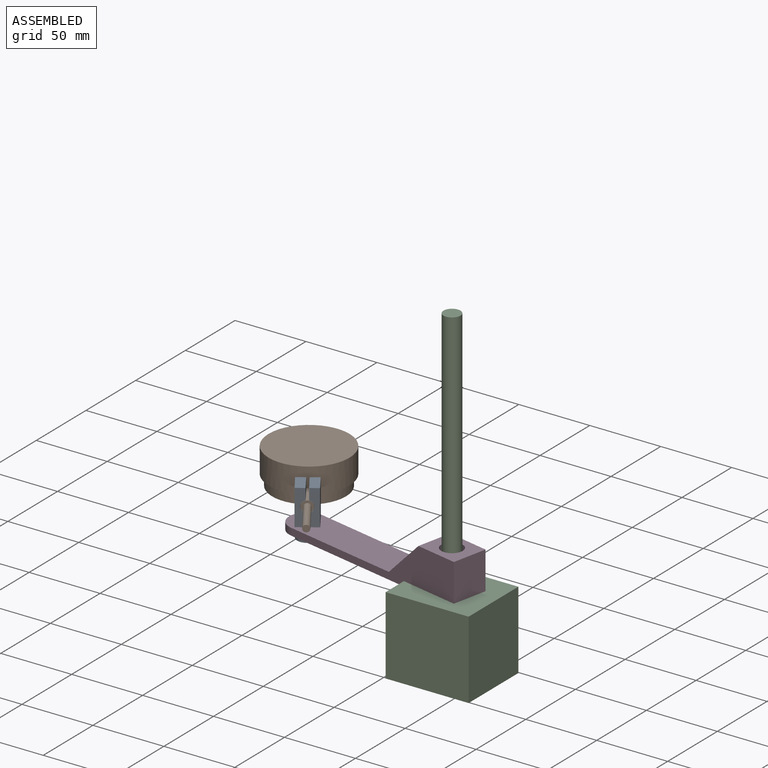
[diagram: assembled view]
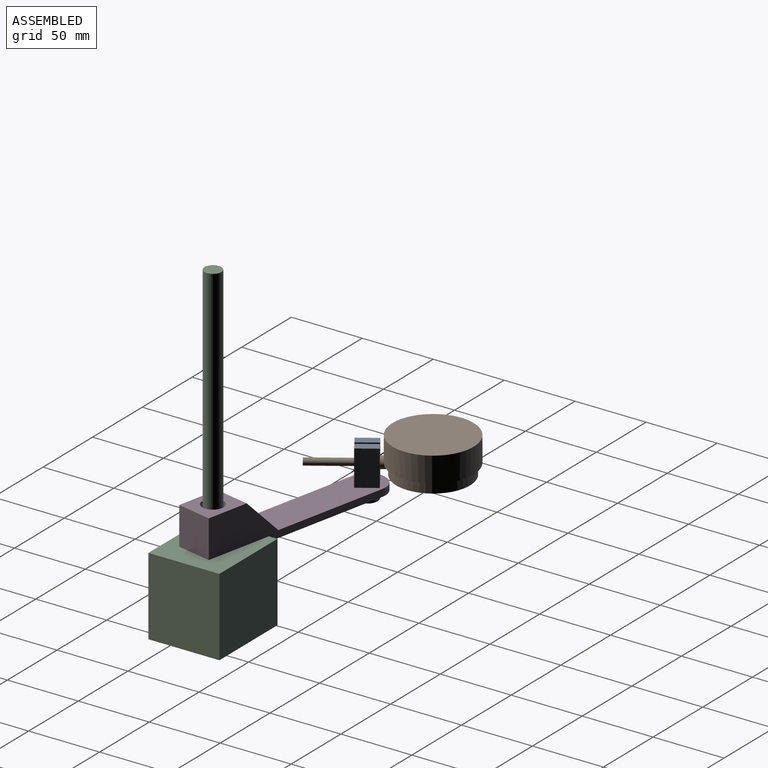
[diagram: assembled view, second angle]
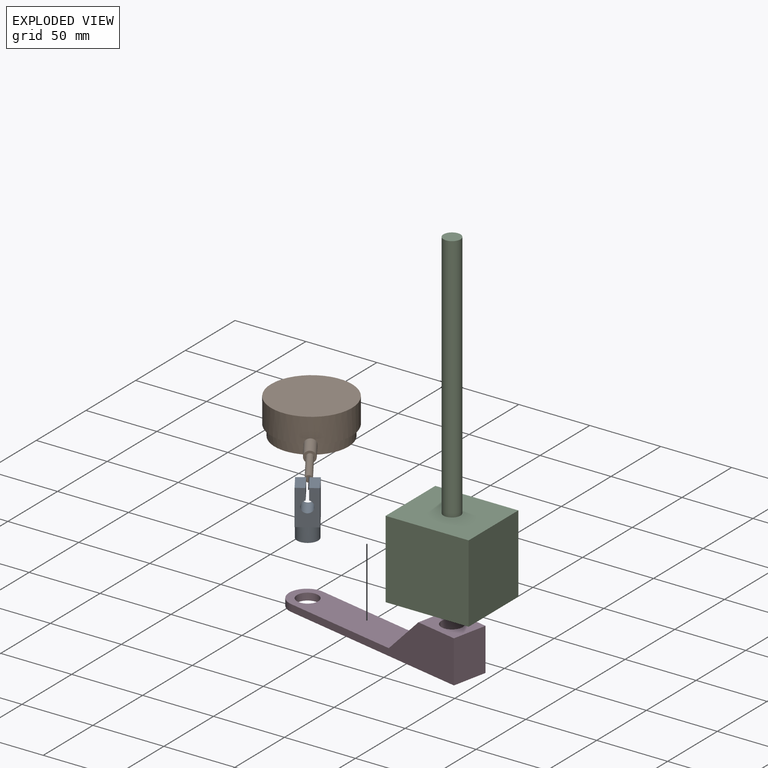
[diagram: exploded view]
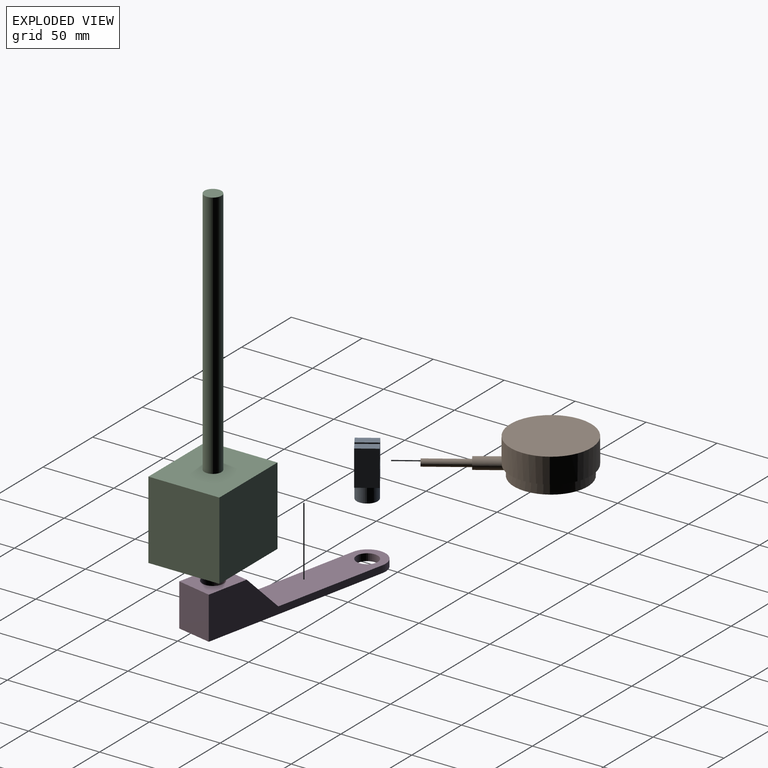
[diagram: exploded view, second angle]
ASSEMBLY  parts=4 mates=3
PART A: 15 faces, bbox 14.8x14.8x35 mm
  f0: plane 14.8x6.4mm, normal (0,0,1), area 94.7mm2, adj f7,f8,f10,f14
  f1: cylinder r=7.4mm len=14.8mm, axis (0,0,1), area 465mm2, adj f2,f3,f4,f5,f6
  f2: plane 14.8x14.8mm, normal (0,0,-1), area 172mm2, adj f1
  f3: plane 7.4x7.4mm, normal (0,0,-1), area 11.8mm2, adj f1,f7,f8
  f4: plane 7.4x7.4mm, normal (0,0,-1), area 11.8mm2, adj f1,f8,f9
  f5: plane 7.4x7.4mm, normal (0,0,-1), area 11.8mm2, adj f1,f9,f10
  f6: plane 7.4x7.4mm, normal (0,0,-1), area 11.8mm2, adj f1,f7,f10
  f7: plane 25x14.8mm, normal (1,0,0), area 370mm2, adj f0,f3,f6,f8,f10
  f8: plane 25x14.8mm, normal (0,1,0), area 300.1mm2, adj f0,f3,f4,f7,f9,f11,f12,f13
  f9: plane 25x14.8mm, normal (-1,0,0), area 370mm2, adj f4,f5,f8,f10,f11
  f10: plane 25x14.8mm, normal (0,-1,0), area 300.1mm2, adj f0,f5,f6,f7,f9,f11,f12,f13
  f11: plane 14.8x6.4mm, normal (0,0,1), area 94.7mm2, adj f8,f9,f10,f12
  f12: plane 14.8x7.97mm, normal (1,0,0), area 118mm2, adj f8,f10,f11,f13
  f13: cylinder r=4.15mm len=14.8mm, axis (0,-1,0), area 356mm2, adj f8,f10,f12,f14
  f14: plane 14.8x7.97mm, normal (-1,0,0), area 118mm2, adj f0,f8,f10,f13
PART B: 9 faces, bbox 57x103.7x25.3 mm
  f0: cylinder r=26mm len=52mm, axis (0,0,1), area 1216.3mm2, adj f1,f3,f6
  f1: plane 57x56.72mm, normal (0,0,-1), area 408mm2, adj f0,f2,f6
  f2: cylinder r=28.5mm len=57mm, axis (0,0,1), area 3144.4mm2, adj f1,f4,f6
  f3: plane 52x52mm, normal (0,0,-1), area 2123.7mm2, adj f0
  f4: plane 57x57mm, normal (0,0,1), area 2551.8mm2, adj f2
  f5: plane 8x8mm, normal (0,-1,0), area 32.2mm2, adj f6,f8
  f6: cylinder r=4mm len=19.71mm, axis (0,1,0), area 459.9mm2, adj f0,f1,f2,f5
  f7: plane 4.8x4.8mm, normal (0,-1,0), area 18.1mm2, adj f8
  f8: cylinder r=2.4mm len=29.8mm, axis (0,1,0), area 449.4mm2, adj f5,f7
PART C: 8 faces, bbox 58.5x50x231 mm
  f0: plane 58.5x55mm, normal (0,1,0), area 3217.5mm2, adj f1,f3,f4,f5
  f1: plane 55x50mm, normal (-1,0,0), area 2750mm2, adj f0,f2,f4,f5
  f2: plane 58.5x55mm, normal (0,-1,0), area 3217.5mm2, adj f1,f3,f4,f5
  f3: plane 55x50mm, normal (1,0,0), area 2750mm2, adj f0,f2,f4,f5
  f4: plane 58.5x50mm, normal (0,0,1), area 2811.9mm2, adj f0,f1,f2,f3,f6
  f5: plane 58.5x50mm, normal (0,0,-1), area 2925mm2, adj f0,f1,f2,f3
  f6: cylinder r=6mm len=176mm, axis (0,0,-1), area 6635mm2, adj f4,f7
  f7: plane 12x12mm, normal (0,0,1), area 113.1mm2, adj f6
PART D: 10 faces, bbox 150x25x30 mm
  f0: plane 150x25mm, normal (0,0,-1), area 3329.5mm2, adj f1,f5,f6,f7,f8,f9
  f1: plane 30x25mm, normal (1,0,0), area 750mm2, adj f0,f2,f5,f6
  f2: plane 30x25mm, normal (0,0,1), area 573.3mm2, adj f1,f3,f5,f6,f7
  f3: plane 25x25mm, normal (-0.71,0,0.71), area 883.9mm2, adj f2,f4,f5,f6
  f4: plane 95x25mm, normal (0,0,1), area 2131.2mm2, adj f3,f5,f6,f8,f9
  f5: plane 137.5x30mm, normal (0,-1,0), area 1750mm2, adj f0,f1,f2,f3,f4,f8
  f6: plane 137.5x30mm, normal (0,1,0), area 1750mm2, adj f0,f1,f2,f3,f4,f8
  f7: cylinder r=7.5mm len=30mm, axis (0,0,1), area 1413.7mm2, adj f0,f2
  f8: cylinder r=12.5mm len=25mm, axis (0,0,1), area 196.3mm2, adj f0,f4,f5,f6
  f9: cylinder r=7.5mm len=15mm, axis (0,0,1), area 235.6mm2, adj f0,f4
PLACE A rot(axis=(0,0,1),33.8deg) t=(-132.35,90.89,50.98)mm
PLACE B rot(axis=(0,0,1),33.8deg) t=(-153.53,122.54,63.98)mm
PLACE C t=(-42.29,40.77,-5.56)mm fixed
PLACE D rot(axis=(0,0,-1),11.9deg) t=(1.64,62.67,45.98)mm
MATE cylindrical D.f7 <-> C.f6  axis (0,0,1) through (-13.04,65.77,75.98)mm
MATE fastened A.f13 <-> B.f6  axis (0.56,-0.83,0) through (-128.23,84.74,63.98)mm
MATE revolute D.f9 <-> A.f1  axis (0,0,1) through (-132.35,90.89,50.98)mm
